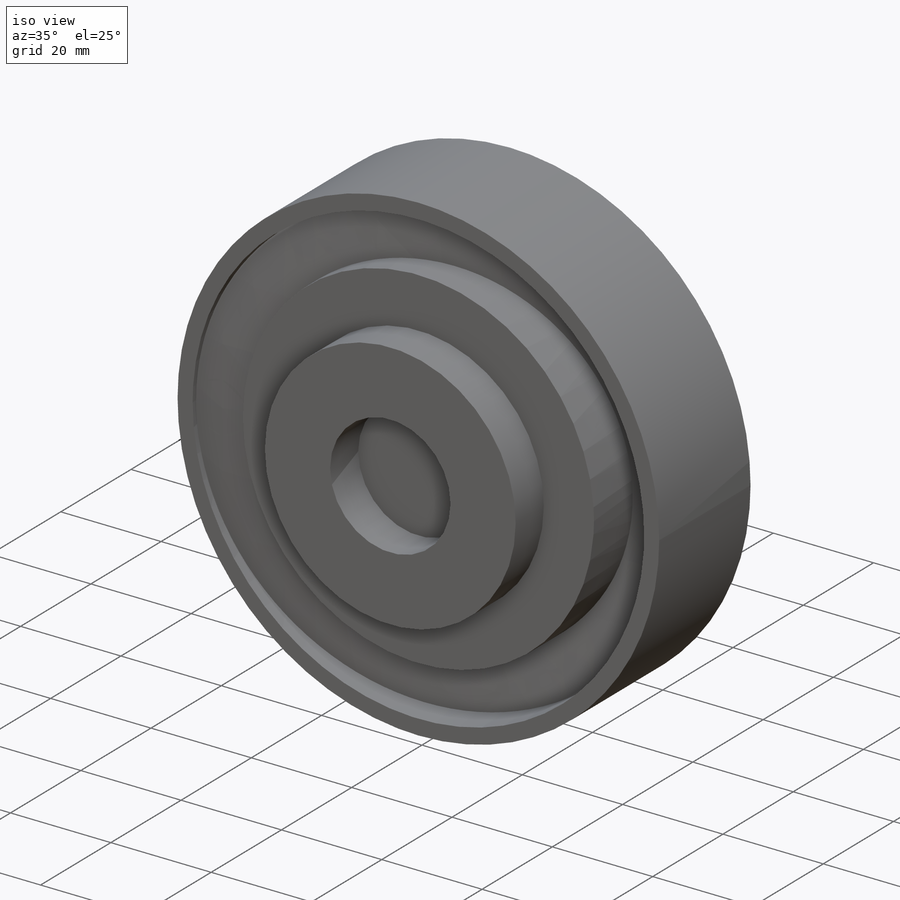
[diagram: iso view]
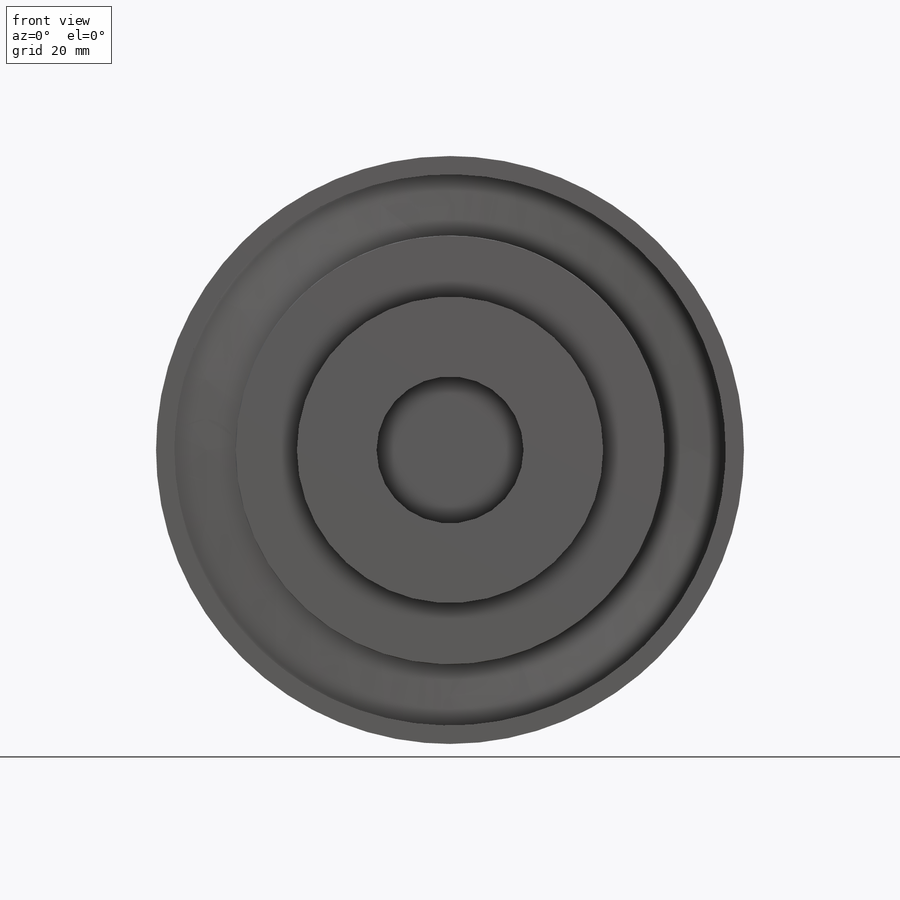
[diagram: front view]
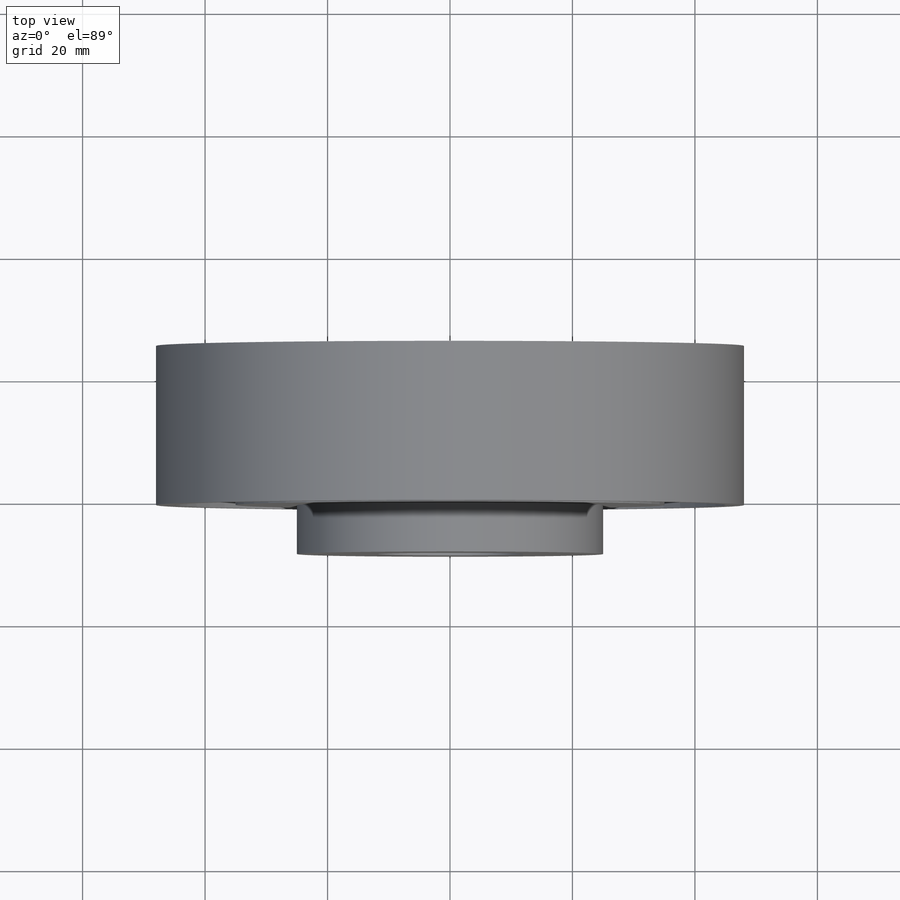
[diagram: top view]
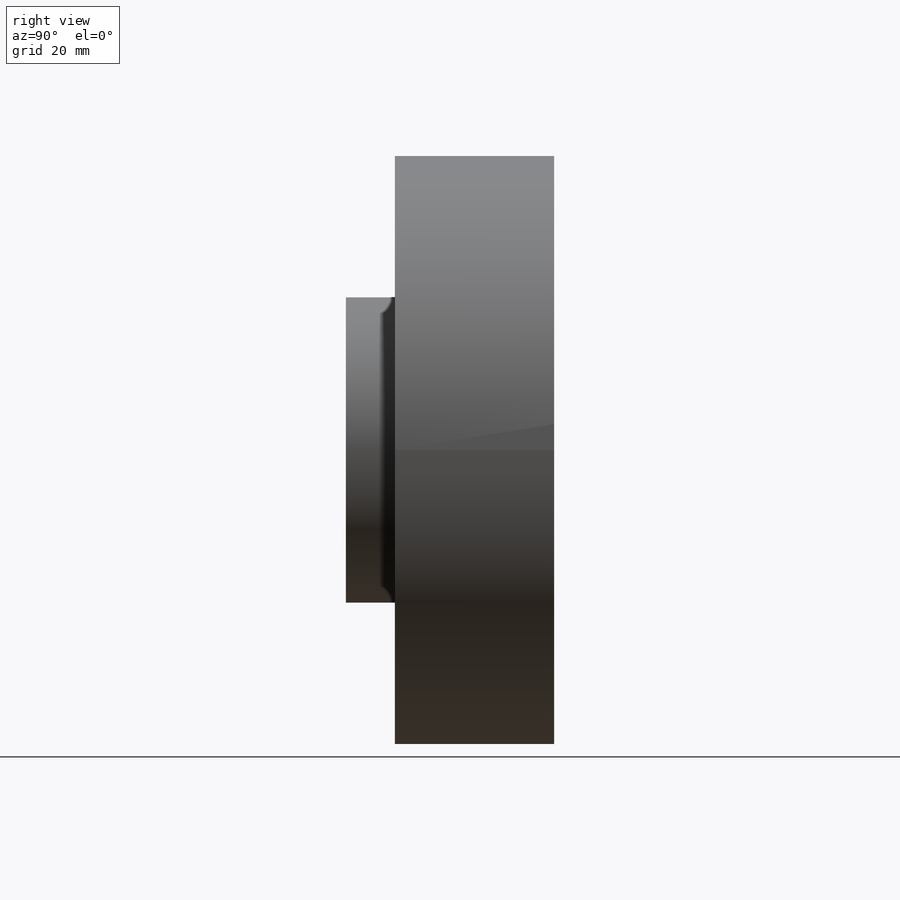
[diagram: right view]
SOLIDWORKS PART (.sldprt)
format: sldprt  version: not decoded by parser v0  size: 313,856 bytes
history: native  units: mm
features: sketch x13, plane x6, extrude x4, material x1 (+8 scaffold rows collapsed)
feature tree (32):
  scaffold x8  (default folders/planes/origin — collapsed)
  material  "Matériau <non spécifié>"
  plane  "Plan de face"
  plane  "Plan de dessus"
  plane  "Plan de droite"
  sketch  "Esquisse1"  dims[D1=100.0mm]
  sketch  "Esquisse2"  dims[D2=10.0mm D1=10.0mm]
  sketch  "Esquisse3"  dims[D1=10.0mm]
  plane  "Plan1"  Offset=10mm
  sketch  "Esquisse4"  dims[D1=10.0mm]
  plane  "Plan2"  Offset=5mm
  sketch  "Esquisse5"
  sketch  "Esquisse6"
  sketch  "Esquisse7"
  sketch  "Esquisse8"
  sketch  "Esquisse9"
  plane  "Plan3"  Offset=25mm
  sketch  "Esquisse10"
  extrude  "Boss.-Extru.1"  [1 undecoded]
  sketch  "Esquisse11"  dims[D1=3.0mm]
  extrude  "Boss.-Extru.2"  Depth=26mm
  sketch  "Esquisse12"  dims[D1=0.0mm]
  extrude  "Boss.-Extru.3"  [1 undecoded]
  sketch  "Esquisse13"  dims[D1=13.0mm]
  extrude  "Boss.-Extru.4"  Depth=8mm
decode coverage: 9 of 17 modeling features carry decoded parameters
note: 2 parameter values undecoded
note: suppression state not decoded; provenance and decode notes live in map.json
